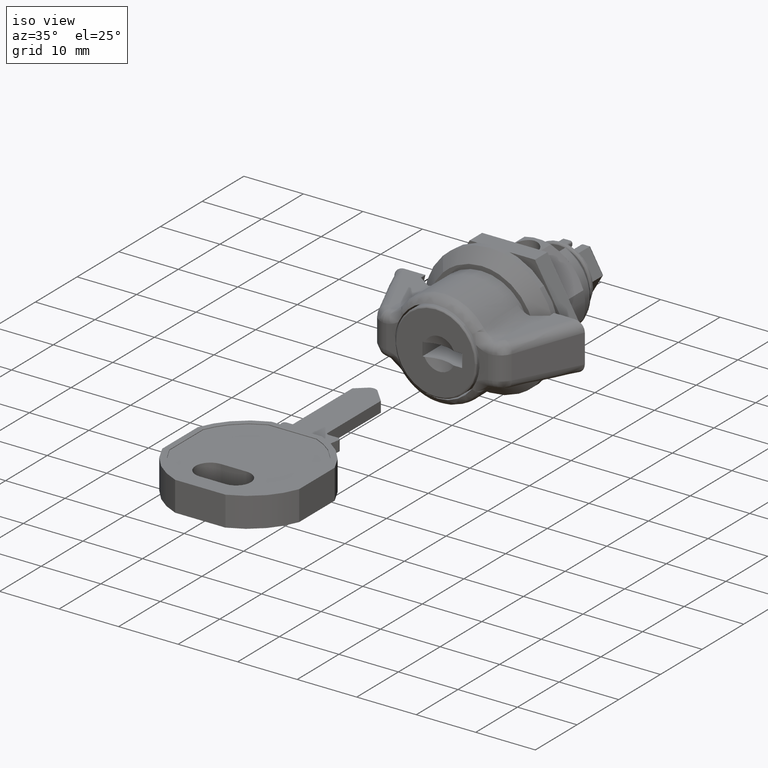
[diagram: clean part render]
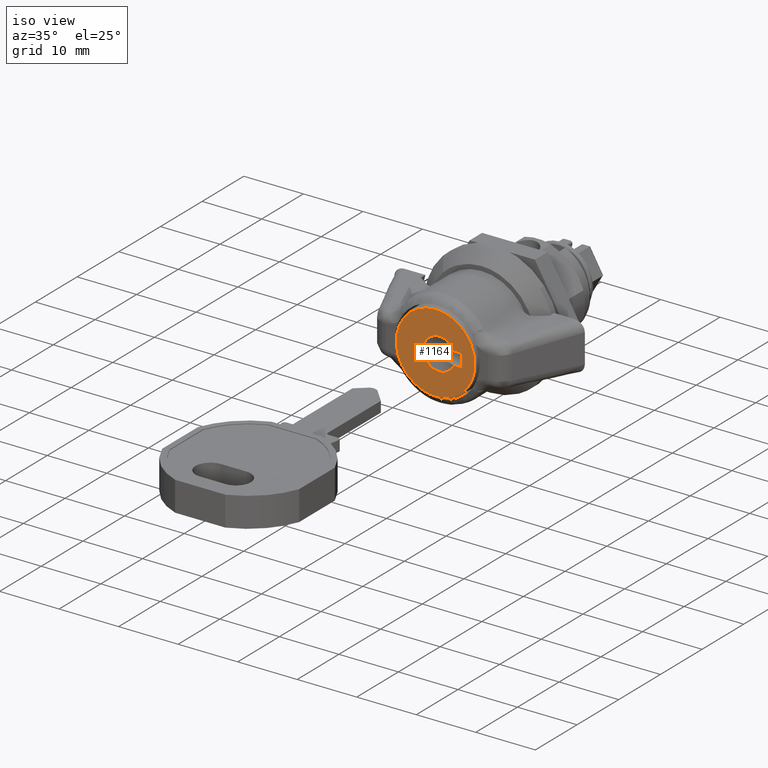
[diagram: same view with one face highlighted and labeled with its STEP entity id]
A machine part, iso view. The second image highlights one B-rep face of the part: STEP entity #1164.
In plain terms, the highlighted face is a freeform B-spline surface patch.
Its self-contained STEP definition (entity closure, byte-faithful):
#765=CARTESIAN_POINT('',(-13.950000891718620,6.583928859220205,-0.460249010813798));
#766=VERTEX_POINT('',#765);
#776=CARTESIAN_POINT('',(-13.950000891718620,-0.000036065070901,6.600024179624742));
#777=VERTEX_POINT('',#776);
#778=CARTESIAN_POINT('',(-13.950000891718620,-0.000036065070901,6.600024179624742));
#779=CARTESIAN_POINT('',(-13.950000891718609,0.451124551489981,6.600083501217950));
#780=CARTESIAN_POINT('',(-13.950000891718620,1.240636266822186,6.518751238871882));
#781=CARTESIAN_POINT('',(-13.950000891718631,2.245702997892770,6.227550520417133));
#782=CARTESIAN_POINT('',(-13.950000891718650,3.227269285893851,5.793332874743216));
#783=CARTESIAN_POINT('',(-13.950000891718551,4.292776934102211,5.090487517833830));
#784=CARTESIAN_POINT('',(-13.950000891718719,5.326630673950827,3.995973396237022));
#785=CARTESIAN_POINT('',(-13.950000891718529,6.095955832753194,2.671444030602686));
#786=CARTESIAN_POINT('',(-13.950000891718640,6.560110271467925,1.180797506881695));
#787=CARTESIAN_POINT('',(-13.950000891718640,6.623427070752083,0.102339920952903));
#788=CARTESIAN_POINT('',(-13.950000891718620,6.583928859220205,-0.460249010813798));
#789=B_SPLINE_CURVE_WITH_KNOTS('',3,(#778,#779,#780,#781,#782,#783,#784,#785,#786,#787,#788),.UNSPECIFIED.,.F.,.U.,(4,1,1,1,1,1,1,1,4),(0.000000065625851,1.353481402220572,2.368619776185483,3.129968885547394,4.568084626385759,6.175318331104882,7.613433617697433,9.136121077510895,10.827994883746561),.UNSPECIFIED.);
#790=EDGE_CURVE('',#777,#766,#789,.T.);
#792=CARTESIAN_POINT('',(-13.950000891718620,-6.599546493992675,0.082928909959149));
#793=VERTEX_POINT('',#792);
#794=CARTESIAN_POINT('',(-13.950000891718620,-6.599546493992675,0.082928909959149));
#795=CARTESIAN_POINT('',(-13.950000891718620,-6.593893981288289,0.538189033563358));
#796=CARTESIAN_POINT('',(-13.950000891718620,-6.497138702846542,1.367261753197391));
#797=CARTESIAN_POINT('',(-13.950000891718631,-6.126169181309623,2.546768943389503));
#798=CARTESIAN_POINT('',(-13.950000891718620,-5.640634188308172,3.476502954406220));
#799=CARTESIAN_POINT('',(-13.950000891718631,-5.037102755417680,4.298307649476621));
#800=CARTESIAN_POINT('',(-13.950000891718620,-4.417754055772408,4.932669343602918));
#801=CARTESIAN_POINT('',(-13.950000891718579,-3.589410290386089,5.572113855684194));
#802=CARTESIAN_POINT('',(-13.950000891718750,-2.715233903822811,6.048684386971775));
#803=CARTESIAN_POINT('',(-13.950000891718430,-1.472954151920425,6.480824765337007));
#804=CARTESIAN_POINT('',(-13.950000891718879,-0.589270507499437,6.600242212911413));
#805=CARTESIAN_POINT('',(-13.950000891718620,-0.000036065070901,6.600024179624742));
#806=B_SPLINE_CURVE_WITH_KNOTS('',3,(#794,#795,#796,#797,#798,#799,#800,#801,#802,#803,#804,#805),.UNSPECIFIED.,.F.,.U.,(4,1,1,1,1,1,1,1,1,4),(0.000000071832206,1.365883413243783,2.490759485898047,3.695984019942646,4.499466174940677,5.543943296136999,6.347416055376240,7.632974484646667,8.516805418350993,10.284430347305809),.UNSPECIFIED.);
#807=EDGE_CURVE('',#793,#777,#806,.T.);
#850=CARTESIAN_POINT('',(-13.950000891718620,-0.000036065070901,-6.600038879034717));
#851=VERTEX_POINT('',#850);
#852=CARTESIAN_POINT('',(-13.950000891718620,-0.000036065070901,-6.600038879034717));
#853=CARTESIAN_POINT('',(-13.950000891718700,-0.571556550430465,-6.600229805216883));
#854=CARTESIAN_POINT('',(-13.950000891718499,-1.415088151886480,-6.489728664992541));
#855=CARTESIAN_POINT('',(-13.950000891718730,-2.708557141157551,-6.058824579958243));
#856=CARTESIAN_POINT('',(-13.950000891718490,-3.669914541794985,-5.532364709351470));
#857=CARTESIAN_POINT('',(-13.950000891718700,-4.682618026624438,-4.702428176175599));
#858=CARTESIAN_POINT('',(-13.950000891718670,-5.481045498500679,-3.763870333033075));
#859=CARTESIAN_POINT('',(-13.950000891718579,-6.156107372688940,-2.512212075929057));
#860=CARTESIAN_POINT('',(-13.950000891718700,-6.532436906768677,-1.224293198616734));
#861=CARTESIAN_POINT('',(-13.950000891718540,-6.604707803081427,-0.325245352060763));
#862=CARTESIAN_POINT('',(-13.950000891718620,-6.599546493992675,0.082928909959149));
#863=B_SPLINE_CURVE_WITH_KNOTS('',3,(#852,#853,#854,#855,#856,#857,#858,#859,#860,#861,#862),.UNSPECIFIED.,.F.,.U.,(4,1,1,1,1,1,1,1,4),(0.000000069945560,1.714501549807819,2.530934814079958,4.082173595726548,4.980259143626073,6.449783272975765,7.756089133448541,9.225682289461204,10.450310352085801),.UNSPECIFIED.);
#864=EDGE_CURVE('',#851,#793,#863,.T.);
#866=CARTESIAN_POINT('',(-13.950000891718620,6.583928859220205,-0.460249010813798));
#867=CARTESIAN_POINT('',(-13.950000891718631,6.539256563012780,-1.103713825063072));
#868=CARTESIAN_POINT('',(-13.950000891718590,6.348478127235119,-1.969487807961846));
#869=CARTESIAN_POINT('',(-13.950000891718680,5.816337439144036,-3.174846997240441));
#870=CARTESIAN_POINT('',(-13.950000891718540,5.314105168297711,-3.961567328374303));
#871=CARTESIAN_POINT('',(-13.950000891718760,4.575942099231757,-4.792245757034221));
#872=CARTESIAN_POINT('',(-13.950000891718529,3.717958672608906,-5.503135058724658));
#873=CARTESIAN_POINT('',(-13.950000891718700,2.693151549773686,-6.060794839139815));
#874=CARTESIAN_POINT('',(-13.950000891718471,1.444607907185545,-6.486159209935492));
#875=CARTESIAN_POINT('',(-13.950000891718700,0.567553553824054,-6.600195662495949));
#876=CARTESIAN_POINT('',(-13.950000891718620,-0.000036065070901,-6.600038879034717));
#877=B_SPLINE_CURVE_WITH_KNOTS('',3,(#866,#867,#868,#869,#870,#871,#872,#873,#874,#875,#876),.UNSPECIFIED.,.F.,.U.,(4,1,1,1,1,1,1,1,4),(0.000000072392291,1.934908905061545,2.631480266619702,3.947227220759454,4.721213027014412,5.959521930848025,7.275266847548302,8.204027997399441,9.906746571156713),.UNSPECIFIED.);
#878=EDGE_CURVE('',#766,#851,#877,.T.);
#908=CARTESIAN_POINT('',(-13.950000891718620,1.861280243122120,1.110000052722312));
#909=VERTEX_POINT('',#908);
#910=CARTESIAN_POINT('',(-13.950000891718620,-3.061280300118915,1.110000052722312));
#911=VERTEX_POINT('',#910);
#922=CARTESIAN_POINT('',(-13.950000891718620,-3.061280300118915,1.110000052722312));
#923=CARTESIAN_POINT('',(-13.950000891718631,-2.968484995178663,1.315888531930751));
#924=CARTESIAN_POINT('',(-13.950000891718620,-2.730813164579156,1.704163178119201));
#925=CARTESIAN_POINT('',(-13.950000891718620,-2.264263917066495,2.157263277859488));
#926=CARTESIAN_POINT('',(-13.950000891718609,-1.804347491696856,2.431442932865633));
#927=CARTESIAN_POINT('',(-13.950000891718650,-1.336729250468965,2.611454500080360));
#928=CARTESIAN_POINT('',(-13.950000891718570,-0.875328510590606,2.703617512843392));
#929=CARTESIAN_POINT('',(-13.950000891718719,-0.308462067122576,2.703612748423086));
#930=CARTESIAN_POINT('',(-13.950000891718521,0.311555215948838,2.574056309263811));
#931=CARTESIAN_POINT('',(-13.950000891718570,0.966794791125965,2.244565060511147));
#932=CARTESIAN_POINT('',(-13.950000891719119,1.513858074446325,1.731923706095462));
#933=CARTESIAN_POINT('',(-13.950000891718121,1.768471433197346,1.315889921183261));
#934=CARTESIAN_POINT('',(-13.950000891718620,1.861280243122120,1.110000052722312));
#935=B_SPLINE_CURVE_WITH_KNOTS('',3,(#922,#923,#924,#925,#926,#927,#928,#929,#930,#931,#932,#933,#934),.UNSPECIFIED.,.F.,.U.,(4,1,1,1,1,1,1,1,1,1,4),(0.000000219002469,0.677498776340259,1.355058488837770,1.935803421527020,2.274587822372282,2.855313467314806,3.339249305341908,3.968381859009231,4.742703636229465,5.517025309022579,6.194551297849833),.UNSPECIFIED.);
#936=EDGE_CURVE('',#911,#909,#935,.T.);
#965=CARTESIAN_POINT('',(-13.950000891718620,-3.061280300119025,-1.110000052722086));
#966=VERTEX_POINT('',#965);
#967=CARTESIAN_POINT('',(-13.950000891718620,1.861280243122220,-1.110000052722086));
#968=VERTEX_POINT('',#967);
#980=CARTESIAN_POINT('',(-13.950000891718620,1.861280243122220,-1.110000052722086));
#981=CARTESIAN_POINT('',(-13.950000891718631,1.794978776804583,-1.257044406066878));
#982=CARTESIAN_POINT('',(-13.950000891718620,1.620009464073596,-1.567445205970796));
#983=CARTESIAN_POINT('',(-13.950000891718609,1.291991874018842,-1.948725368367350));
#984=CARTESIAN_POINT('',(-13.950000891718650,0.823433883023567,-2.321659636972189));
#985=CARTESIAN_POINT('',(-13.950000891718620,0.279968532479326,-2.582931215215753));
#986=CARTESIAN_POINT('',(-13.950000891718631,-0.324674036640054,-2.703581990161149));
#987=CARTESIAN_POINT('',(-13.950000891718590,-0.956351226917654,-2.703728179817246));
#988=CARTESIAN_POINT('',(-13.950000891718711,-1.574217553563038,-2.551187645936678));
#989=CARTESIAN_POINT('',(-13.950000891718499,-2.185870446248499,-2.215501024183471));
#990=CARTESIAN_POINT('',(-13.950000891718910,-2.692499292337881,-1.757639234114593));
#991=CARTESIAN_POINT('',(-13.950000891718339,-2.955264150848568,-1.345327731978586));
#992=CARTESIAN_POINT('',(-13.950000891718620,-3.061280300119025,-1.110000052722086));
#993=B_SPLINE_CURVE_WITH_KNOTS('',3,(#980,#981,#982,#983,#984,#985,#986,#987,#988,#989,#990,#991,#992),.UNSPECIFIED.,.F.,.U.,(4,1,1,1,1,1,1,1,1,1,4),(0.000000219003468,0.483910791079631,1.064671818281711,1.500243526067879,2.274587822373193,2.855313467315671,3.339249305342735,4.161961455814224,4.742703636230161,5.420260250545922,6.194551297850319),.UNSPECIFIED.);
#994=EDGE_CURVE('',#968,#966,#993,.T.);
#1006=CARTESIAN_POINT('',(-13.950000891718620,2.200000104494405,1.110000052722312));
#1007=VERTEX_POINT('',#1006);
#1013=CARTESIAN_POINT('',(-13.950000891718620,2.200000104494405,-1.110000052722086));
#1014=VERTEX_POINT('',#1013);
#1015=CARTESIAN_POINT('',(-13.950000891718620,2.200000104494405,1.110000052722312));
#1016=CARTESIAN_POINT('',(-13.950000891718620,2.200000104494405,-1.110000052722086));
#1017=QUASI_UNIFORM_CURVE('',1,(#1015,#1016),.UNSPECIFIED.,.F.,.U.);
#1018=EDGE_CURVE('',#1007,#1014,#1017,.T.);
#1042=CARTESIAN_POINT('',(-13.950000891718620,-4.450000211363601,-1.110000052722086));
#1043=VERTEX_POINT('',#1042);
#1049=CARTESIAN_POINT('',(-13.950000891718620,-4.450000211363601,1.110000052722312));
#1050=VERTEX_POINT('',#1049);
#1051=CARTESIAN_POINT('',(-13.950000891718620,-4.450000211363601,-1.110000052722086));
#1052=CARTESIAN_POINT('',(-13.950000891718620,-4.450000211363601,1.110000052722312));
#1053=QUASI_UNIFORM_CURVE('',1,(#1051,#1052),.UNSPECIFIED.,.F.,.U.);
#1054=EDGE_CURVE('',#1043,#1050,#1053,.T.);
#1105=CARTESIAN_POINT('',(-13.950000891718620,-3.061280300119025,-1.110000052722086));
#1106=CARTESIAN_POINT('',(-13.950000891718620,-4.450000211363601,-1.110000052722086));
#1107=QUASI_UNIFORM_CURVE('',1,(#1105,#1106),.UNSPECIFIED.,.F.,.U.);
#1108=EDGE_CURVE('',#966,#1043,#1107,.T.);
#1113=CARTESIAN_POINT('',(-13.950000891718620,2.200000104494405,-1.110000052722086));
#1114=CARTESIAN_POINT('',(-13.950000891718620,1.861280243122220,-1.110000052722086));
#1115=QUASI_UNIFORM_CURVE('',1,(#1113,#1114),.UNSPECIFIED.,.F.,.U.);
#1116=EDGE_CURVE('',#1014,#968,#1115,.T.);
#1127=CARTESIAN_POINT('',(-13.950000891718620,1.861280243122120,1.110000052722312));
#1128=CARTESIAN_POINT('',(-13.950000891718620,2.200000104494405,1.110000052722312));
#1129=QUASI_UNIFORM_CURVE('',1,(#1127,#1128),.UNSPECIFIED.,.F.,.U.);
#1130=EDGE_CURVE('',#909,#1007,#1129,.T.);
#1135=CARTESIAN_POINT('',(-13.950000891718620,-4.450000211363601,1.110000052722312));
#1136=CARTESIAN_POINT('',(-13.950000891718620,-3.061280300118915,1.110000052722312));
#1137=QUASI_UNIFORM_CURVE('',1,(#1135,#1136),.UNSPECIFIED.,.F.,.U.);
#1138=EDGE_CURVE('',#1050,#911,#1137,.T.);
#1143=CARTESIAN_POINT('',(-13.950000891718620,7.258561223183701,7.259367427733247));
#1144=CARTESIAN_POINT('',(-13.950000891718620,-7.258828199407495,7.259367427733247));
#1145=CARTESIAN_POINT('',(-13.950000891718620,7.258561223183701,-7.259382363178744));
#1146=CARTESIAN_POINT('',(-13.950000891718620,-7.258828199407495,-7.259382363178744));
#1147=B_SPLINE_SURFACE_WITH_KNOTS('',1,1,((#1143,#1145),(#1144,#1146)),.UNSPECIFIED.,.F.,.F.,.U.,(2,2),(2,2),(0.0,14.517389422591201),(0.0,14.518749790911990),.UNSPECIFIED.);
#1148=ORIENTED_EDGE('',*,*,#864,.T.);
#1149=ORIENTED_EDGE('',*,*,#807,.T.);
#1150=ORIENTED_EDGE('',*,*,#790,.T.);
#1151=ORIENTED_EDGE('',*,*,#878,.T.);
#1152=EDGE_LOOP('',(#1148,#1149,#1150,#1151));
#1153=FACE_OUTER_BOUND('',#1152,.T.);
#1154=ORIENTED_EDGE('',*,*,#1130,.F.);
#1155=ORIENTED_EDGE('',*,*,#936,.F.);
#1156=ORIENTED_EDGE('',*,*,#1138,.F.);
#1157=ORIENTED_EDGE('',*,*,#1054,.F.);
#1158=ORIENTED_EDGE('',*,*,#1108,.F.);
#1159=ORIENTED_EDGE('',*,*,#994,.F.);
#1160=ORIENTED_EDGE('',*,*,#1116,.F.);
#1161=ORIENTED_EDGE('',*,*,#1018,.F.);
#1162=EDGE_LOOP('',(#1154,#1155,#1156,#1157,#1158,#1159,#1160,#1161));
#1163=FACE_BOUND('',#1162,.T.);
#1164=ADVANCED_FACE('',(#1153,#1163),#1147,.F.);